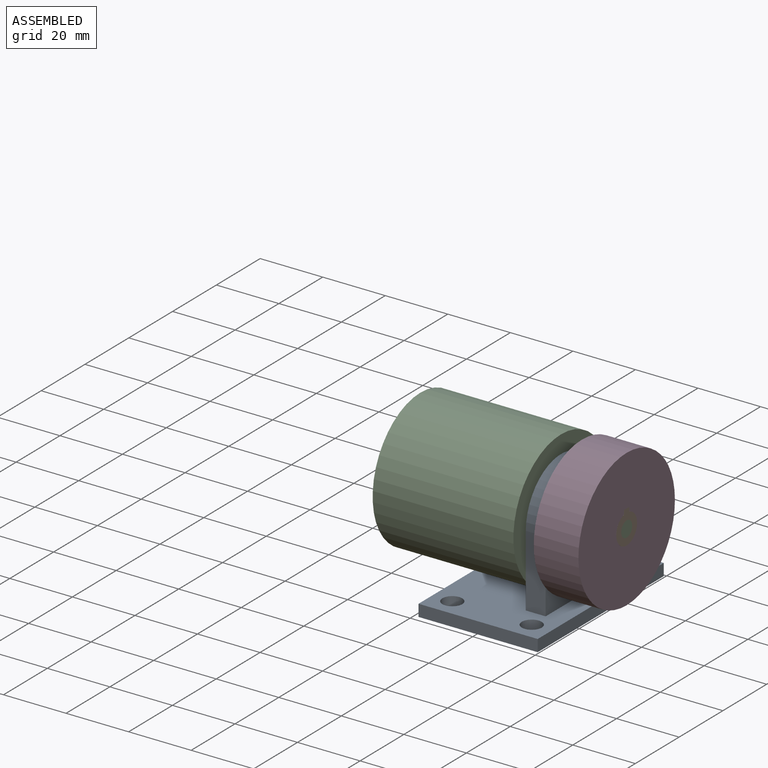
[diagram: assembled view]
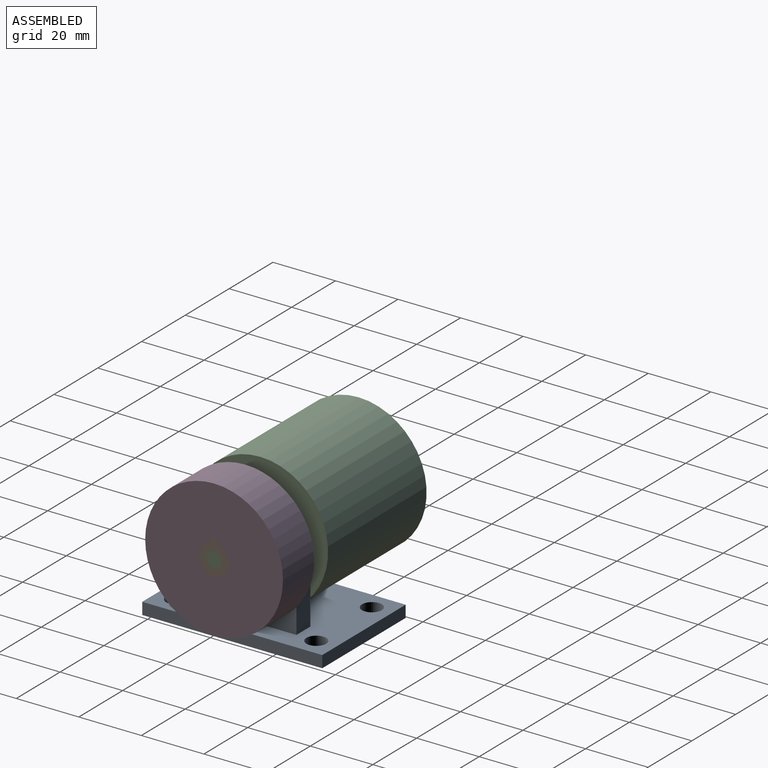
[diagram: assembled view, second angle]
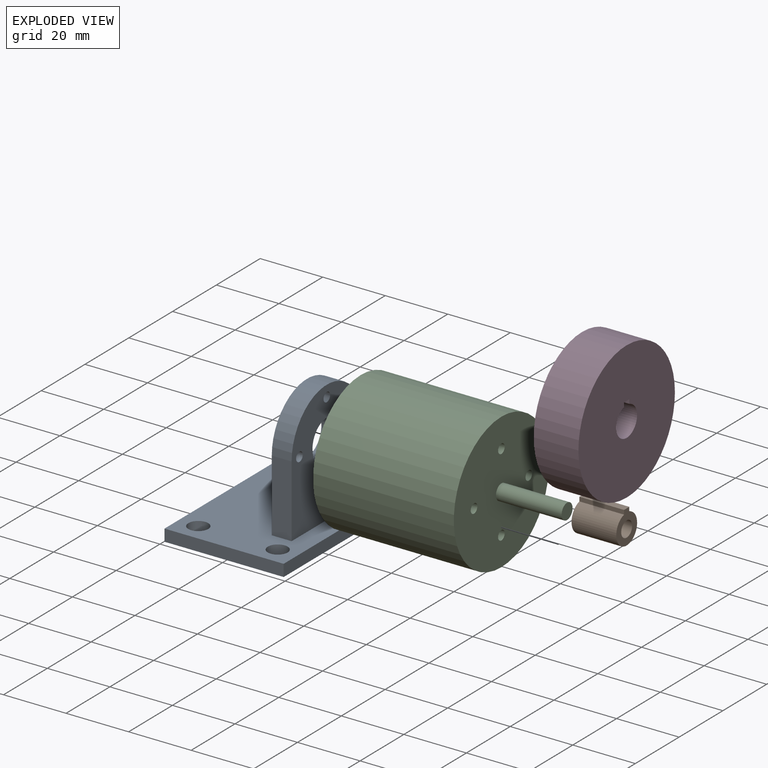
[diagram: exploded view]
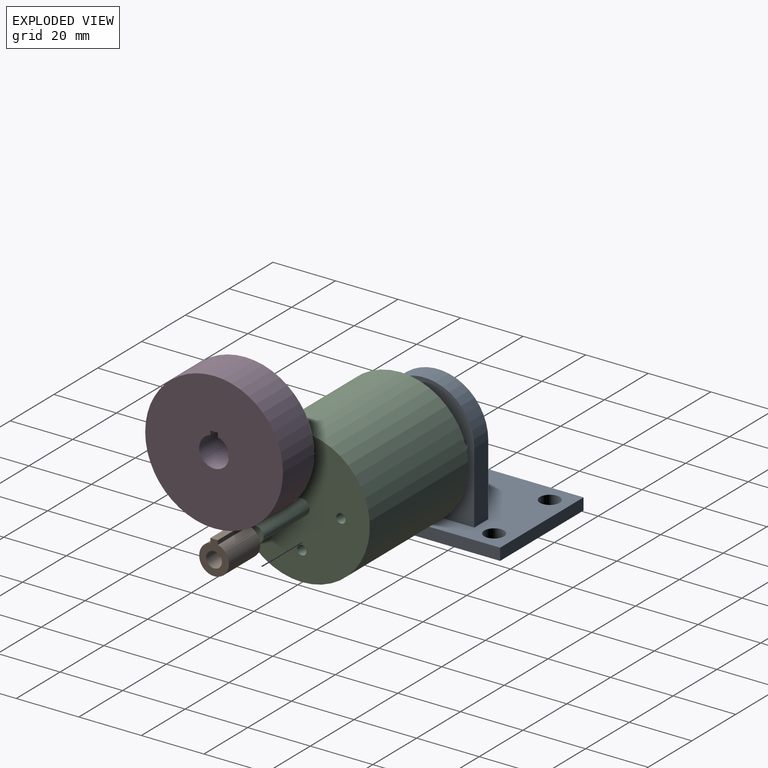
[diagram: exploded view, second angle]
ASSEMBLY  parts=4 mates=3
PART A: 20 faces, bbox 57.6x38.1x42.9 mm
  f0: plane 38.1x3.81mm, normal (-1,0,0), area 145.2mm2, adj f1,f10,f14,f15
  f1: plane 57.56x38.1mm, normal (0,0,-1), area 2066.4mm2, adj f0,f2,f14,f15,f16,f17,f18,f19
  f2: plane 38.1x3.81mm, normal (1,0,0), area 145.2mm2, adj f1,f10,f14,f15
  f3: plane 23.02x6.35mm, normal (1,0,0), area 146.2mm2, adj f4,f10,f12,f13
  f4: cylinder r=16.08mm len=32.16mm, axis (0,-1,0), area 320.8mm2, adj f3,f5,f12,f13
  f5: plane 23.02x6.35mm, normal (-1,0,0), area 146.2mm2, adj f4,f10,f12,f13
  f6: cylinder r=1.5mm len=6.35mm, axis (0,-1,0), area 59.8mm2, adj f12,f13
  f7: cylinder r=1.5mm len=6.35mm, axis (0,-1,0), area 59.8mm2, adj f12,f13
  f8: cylinder r=1.5mm len=6.35mm, axis (0,-1,0), area 59.8mm2, adj f12,f13
  f9: cylinder r=1.5mm len=6.35mm, axis (0,-1,0), area 59.8mm2, adj f12,f13
  f10: plane 57.56x38.1mm, normal (0,0,1), area 1862.1mm2, adj f0,f2,f3,f5,f12,f13,f14,f15
  f11: cylinder r=6.56mm len=13.13mm, axis (0,-1,0), area 261.9mm2, adj f12,f13
  f12: plane 39.1x32.16mm, normal (0,1,0), area 982.8mm2, adj f3,f4,f5,f6,f7,f8,f9,f10
  f13: plane 39.1x32.16mm, normal (0,-1,0), area 982.8mm2, adj f3,f4,f5,f6,f7,f8,f9,f10
  f14: plane 57.56x3.81mm, normal (0,-1,0), area 219.3mm2, adj f0,f1,f2,f10
  f15: plane 57.56x3.81mm, normal (0,1,0), area 219.3mm2, adj f0,f1,f2,f10
  f16: cylinder r=3.17mm len=6.35mm, axis (0,0,-1), area 76mm2, adj f1,f10
  f17: cylinder r=3.17mm len=6.35mm, axis (0,0,-1), area 76mm2, adj f1,f10
  f18: cylinder r=3.17mm len=6.35mm, axis (0,0,-1), area 76mm2, adj f1,f10
  f19: cylinder r=3.17mm len=6.35mm, axis (0,0,-1), area 76mm2, adj f1,f10
PART B: 7 faces, bbox 9.5x14.3x10.7 mm
  f0: plane 14.3x1.35mm, normal (1,0,0), area 19.2mm2, adj f1,f3,f5,f6
  f1: cylinder r=4.76mm len=14.3mm, axis (0,1,0), area 393.2mm2, adj f0,f2,f5,f6
  f2: plane 14.3x1.35mm, normal (-1,0,0), area 19.2mm2, adj f1,f3,f5,f6
  f3: plane 14.3x2.39mm, normal (0,0,1), area 34.1mm2, adj f0,f2,f5,f6
  f4: cylinder r=2.5mm len=14.3mm, axis (0,1,0), area 224.6mm2, adj f5,f6
  f5: plane 10.72x9.52mm, normal (0,-1,0), area 54.5mm2, adj f0,f1,f2,f3,f4
  f6: plane 10.72x9.52mm, normal (0,1,0), area 54.5mm2, adj f0,f1,f2,f3,f4
PART C: 13 faces, bbox 43.5x66x43.5 mm
  f0: cylinder r=21.75mm len=45mm, axis (0,1,0), area 6149.7mm2, adj f1,f2
  f1: plane 43.5x43.5mm, normal (0,-1,0), area 1486.2mm2, adj f0
  f2: plane 43.5x43.5mm, normal (0,1,0), area 1438.3mm2, adj f0,f3,f6,f8,f10,f12
  f3: cylinder r=2.5mm len=21mm, axis (0,-1,0), area 329.9mm2, adj f2,f4
  f4: plane 5x5mm, normal (0,1,0), area 19.6mm2, adj f3
  f5: cone r=0mm half-angle=59deg, axis (0,1,0), area 8.2mm2, adj f6
  f6: cylinder r=1.5mm len=25.4mm, axis (0,1,0), area 239.4mm2, adj f2,f5
  f7: cone r=0mm half-angle=59deg, axis (0,1,0), area 8.2mm2, adj f8
  f8: cylinder r=1.5mm len=25.4mm, axis (0,1,0), area 239.4mm2, adj f2,f7
  f9: cone r=0mm half-angle=59deg, axis (0,1,0), area 8.2mm2, adj f10
  f10: cylinder r=1.5mm len=25.4mm, axis (0,1,0), area 239.4mm2, adj f2,f9
  f11: cone r=0mm half-angle=59deg, axis (0,1,0), area 8.2mm2, adj f12
  f12: cylinder r=1.5mm len=25.4mm, axis (0,1,0), area 239.4mm2, adj f2,f11
PART D: 7 faces, bbox 14.3x44.1x44.1 mm
  f0: plane 14.29x2.38mm, normal (0,0,-1), area 34mm2, adj f1,f3,f5,f6
  f1: plane 14.29x1.34mm, normal (0,1,0), area 19.2mm2, adj f0,f2,f5,f6
  f2: cylinder r=4.76mm len=14.29mm, axis (1,0,0), area 393.1mm2, adj f1,f3,f5,f6
  f3: plane 14.29x1.34mm, normal (0,-1,0), area 19.2mm2, adj f0,f2,f5,f6
  f4: cylinder r=22.03mm len=44.05mm, axis (1,0,0), area 1977.3mm2, adj f5,f6
  f5: plane 44.05x44.05mm, normal (-1,0,0), area 1450mm2, adj f0,f1,f2,f3,f4
  f6: plane 44.05x44.05mm, normal (1,0,0), area 1450mm2, adj f0,f1,f2,f3,f4
PLACE A rot(axis=(0,0,-1),90deg) t=(-31.36,27.99,20.64)mm
PLACE B rot(axis=(0,0,-1),90deg) t=(-31.36,27.99,20.64)mm
PLACE C rot(axis=(0,0,-1),90deg) t=(-31.36,27.99,20.64)mm
PLACE D t=(-70.69,91.49,-11.11)mm
MATE fastened D.f0 <-> B.f3  axis (0,0,-1) through (-17.51,27.99,26.59)mm
MATE fastened B.f4 <-> C.f3  axis (1,0,0) through (-10.36,27.99,20.64)mm
MATE fastened A.f7 <-> C.f9  axis (-1,0,0) through (-31.36,27.99,8.14)mm
